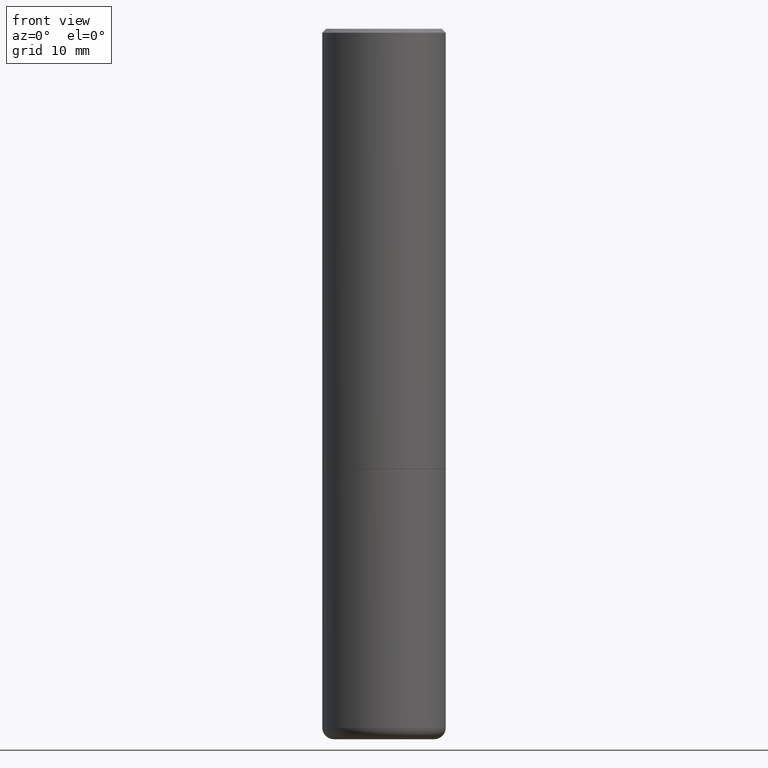
[diagram: clean part render]
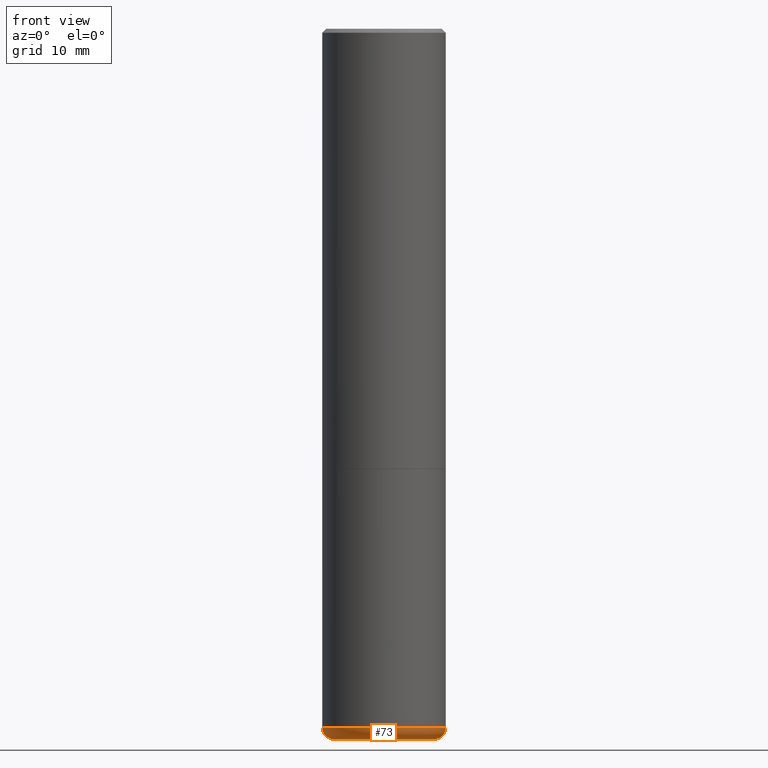
[diagram: same view with one face highlighted and labeled with its STEP entity id]
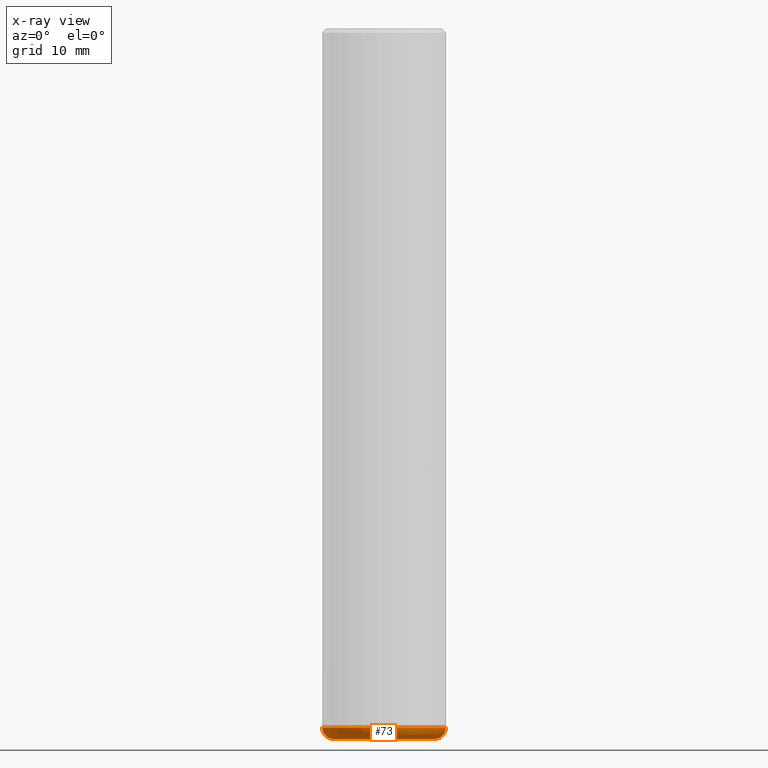
[diagram: x-ray of the same camera — body ghosted, the highlighted face saturated]
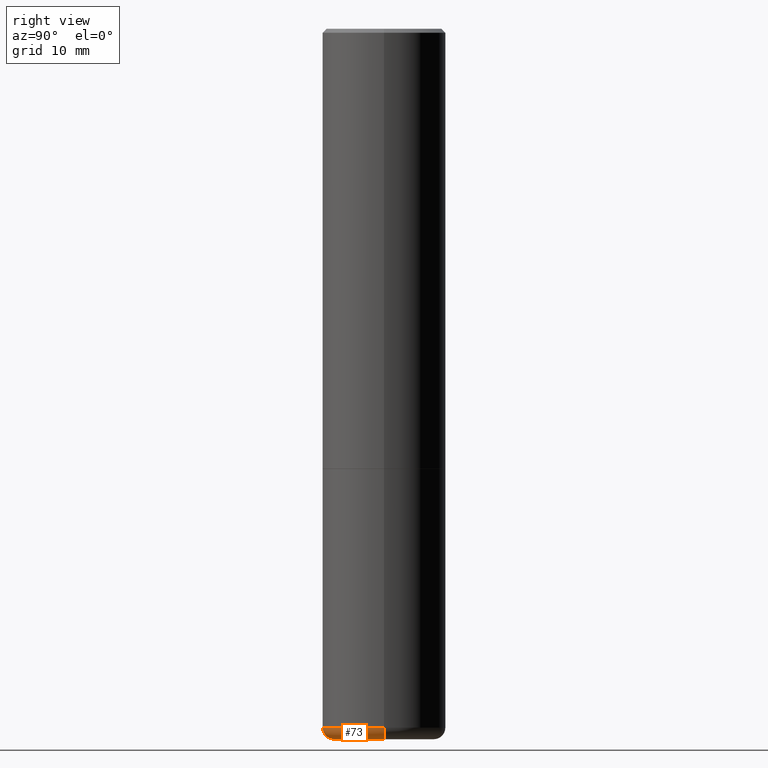
[diagram: same view with one face highlighted and labeled with its STEP entity id]
A machine part, front view. The second image highlights one B-rep face of the part: STEP entity #73.
The next image is the same camera in x-ray: the body ghosted, the highlighted face saturated — about 0% of this face is hidden behind the body in this view.
A second angle (right view) of the same face is appended — the face is thin or edge-on in the first view.
In plain terms, the highlighted toroidal blend (fillet) surface has major radius 6.4986 mm and minor (blend) radius 1.5011 mm.
Its self-contained STEP definition (entity closure, byte-faithful):
#34 = CARTESIAN_POINT ( 'NONE',  ( -0.2558500000000000218, -1.062187527272202748E-14, -3.562899999999999956 ) ) ;
#41 = FACE_OUTER_BOUND ( 'NONE', #295, .T. ) ;
#45 = DIRECTION ( 'NONE',  ( -2.445468806185136597E-29, 3.491481338843145583E-15, 1.000000000000000000 ) ) ;
#61 = AXIS2_PLACEMENT_3D ( 'NONE', #262, #390, #327 ) ;
#66 = CARTESIAN_POINT ( 'NONE',  ( -0.3149500000000000077, -1.020194451588780718E-14, -3.562899999999999956 ) ) ;
#71 = EDGE_CURVE ( 'NONE', #76, #182, #343, .T. ) ;
#73 = ADVANCED_FACE ( 'NONE', ( #41 ), #159, .T. ) ;
#76 = VERTEX_POINT ( 'NONE', #321 ) ;
#78 = EDGE_CURVE ( 'NONE', #76, #359, #138, .T. ) ;
#89 = ORIENTED_EDGE ( 'NONE', *, *, #78, .F. ) ;
#95 = DIRECTION ( 'NONE',  ( 1.000000000000000000, -6.982962677686263555E-15, 0.000000000000000000 ) ) ;
#110 = DIRECTION ( 'NONE',  ( 1.000000000000000000, -6.982962677686269866E-15, 0.000000000000000000 ) ) ;
#136 = ORIENTED_EDGE ( 'NONE', *, *, #71, .T. ) ;
#138 = CIRCLE ( 'NONE', #373, 0.05909999999999999282 ) ;
#140 = CIRCLE ( 'NONE', #395, 0.3149500000000000077 ) ;
#148 = EDGE_CURVE ( 'NONE', #182, #286, #344, .T. ) ;
#159 = TOROIDAL_SURFACE ( 'NONE', #218, 0.2558500000000000218, 0.05909999999999995812 ) ;
#162 = EDGE_CURVE ( 'NONE', #359, #286, #140, .T. ) ;
#163 = DIRECTION ( 'NONE',  ( 7.105427357601001859E-15, 1.000000000000000000, -3.491481338843145583E-15 ) ) ;
#166 = AXIS2_PLACEMENT_3D ( 'NONE', #198, #324, #95 ) ;
#170 = DIRECTION ( 'NONE',  ( -2.445468806185136597E-29, 3.491481338843145583E-15, 1.000000000000000000 ) ) ;
#182 = VERTEX_POINT ( 'NONE', #385 ) ;
#198 = CARTESIAN_POINT ( 'NONE',  ( 8.857488016002564476E-29, -1.264614540928987199E-14, -3.621999999999999886 ) ) ;
#200 = CARTESIAN_POINT ( 'NONE',  ( 8.712960809557023143E-29, -1.243979886216424317E-14, -3.562899999999999956 ) ) ;
#218 = AXIS2_PLACEMENT_3D ( 'NONE', #200, #45, #220 ) ;
#220 = DIRECTION ( 'NONE',  ( 1.000000000000000000, -6.982962677686269866E-15, 4.883557194083113462E-29 ) ) ;
#223 = ORIENTED_EDGE ( 'NONE', *, *, #148, .T. ) ;
#262 = CARTESIAN_POINT ( 'NONE',  ( 0.2558500000000000218, -1.422638986325027382E-14, -3.562899999999999956 ) ) ;
#286 = VERTEX_POINT ( 'NONE', #397 ) ;
#295 = EDGE_LOOP ( 'NONE', ( #89, #136, #223, #410 ) ) ;
#321 = CARTESIAN_POINT ( 'NONE',  ( -0.2558500000000000218, -1.051508316786773174E-14, -3.621999999999999886 ) ) ;
#324 = DIRECTION ( 'NONE',  ( -2.445468806185136597E-29, 3.491481338843145583E-15, 1.000000000000000000 ) ) ;
#327 = DIRECTION ( 'NONE',  ( 1.000000000000000000, -6.982962677686262766E-15, 0.000000000000000000 ) ) ;
#343 = CIRCLE ( 'NONE', #166, 0.2558500000000000218 ) ;
#344 = CIRCLE ( 'NONE', #61, 0.05909999999999999282 ) ;
#356 = CARTESIAN_POINT ( 'NONE',  ( 8.712960809557023143E-29, -1.243979886216424317E-14, -3.562899999999999956 ) ) ;
#359 = VERTEX_POINT ( 'NONE', #66 ) ;
#373 = AXIS2_PLACEMENT_3D ( 'NONE', #34, #163, #413 ) ;
#385 = CARTESIAN_POINT ( 'NONE',  ( 0.2558500000000000218, -1.443273641037590422E-14, -3.621999999999999886 ) ) ;
#390 = DIRECTION ( 'NONE',  ( -6.982962677686266711E-15, -1.000000000000000000, 3.491481338843145583E-15 ) ) ;
#395 = AXIS2_PLACEMENT_3D ( 'NONE', #356, #170, #110 ) ;
#397 = CARTESIAN_POINT ( 'NONE',  ( 0.3149500000000000077, -1.463908295750153462E-14, -3.562899999999999956 ) ) ;
#410 = ORIENTED_EDGE ( 'NONE', *, *, #162, .F. ) ;
#413 = DIRECTION ( 'NONE',  ( -1.000000000000000000, 7.105427357600993181E-15, 0.000000000000000000 ) ) ;